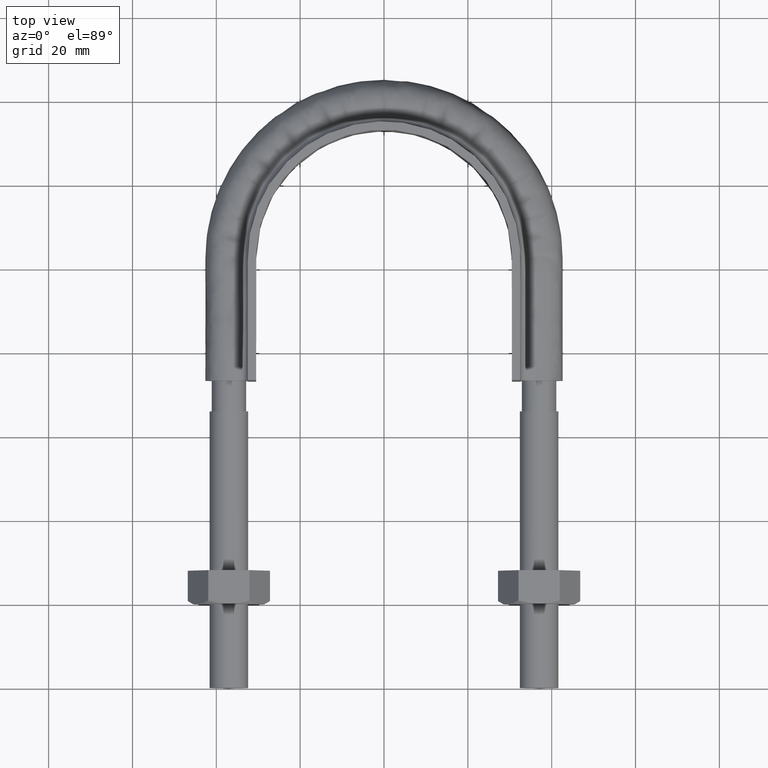
[diagram: clean part render]
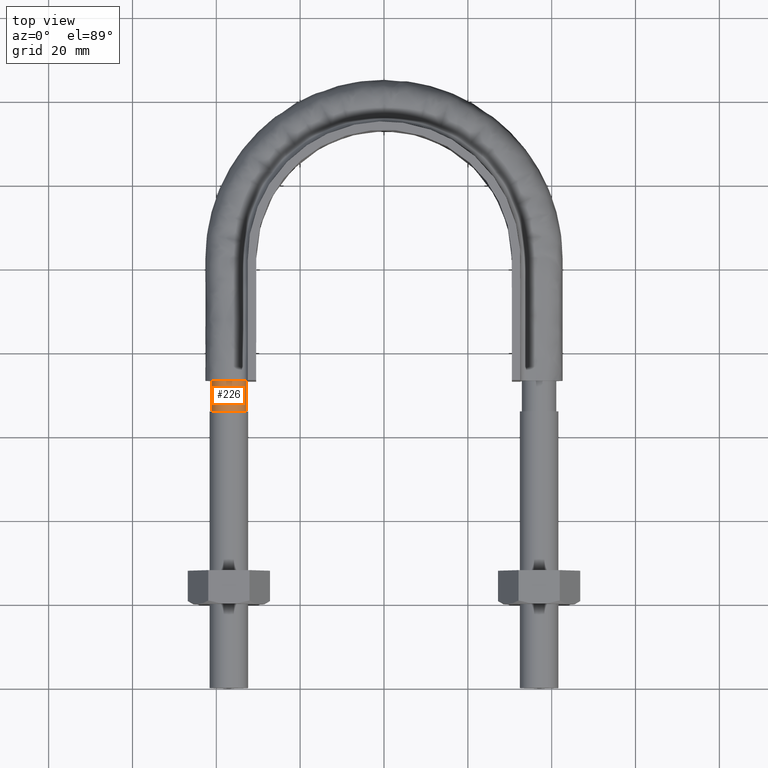
[diagram: same view with one face highlighted and labeled with its STEP entity id]
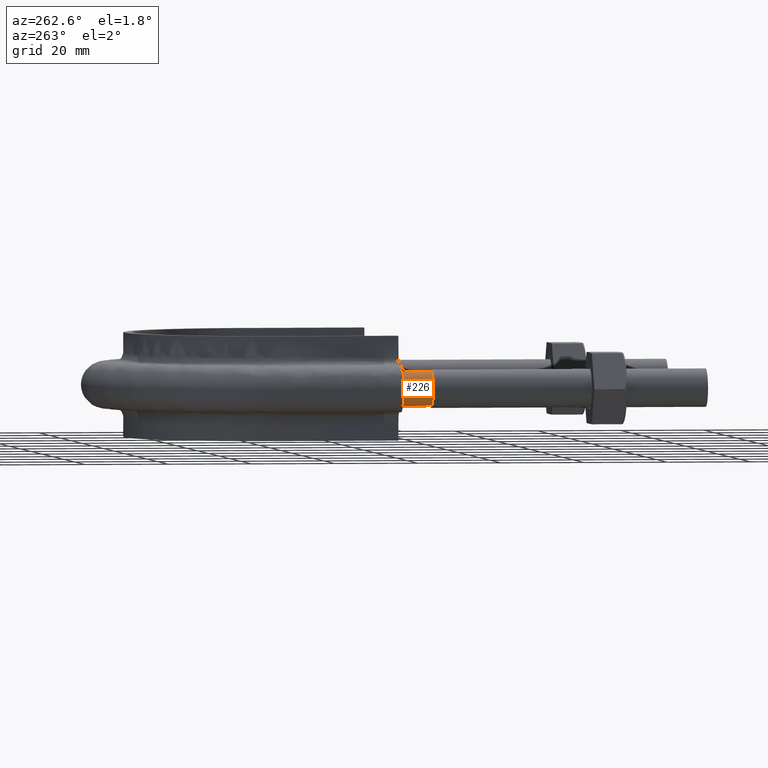
[diagram: same view with one face highlighted and labeled with its STEP entity id]
A machine part, top view. The second image highlights one B-rep face of the part: STEP entity #226.
A second angle (auxiliary view) of the same face is appended — the face is thin or edge-on in the first view.
In plain terms, the highlighted cylindrical surface (bore or boss wall) has radius 4.1 mm, axis along (0, 1, -0).
Its self-contained STEP definition (entity closure, byte-faithful):
#226 = ADVANCED_FACE( '', ( #313, #314 ), #315, .T. );
#313 = FACE_OUTER_BOUND( '', #1161, .T. );
#314 = FACE_OUTER_BOUND( '', #1162, .T. );
#315 = CYLINDRICAL_SURFACE( '', #1163, 4.10000000000000 );
#1161 = EDGE_LOOP( '', ( #1523, #1524, #1525, #1526, #1527, #1528, #1529 ) );
#1162 = EDGE_LOOP( '', ( #1530 ) );
#1163 = AXIS2_PLACEMENT_3D( '', #1531, #1532, #1533 );
#1523 = ORIENTED_EDGE( '', *, *, #2017, .T. );
#1524 = ORIENTED_EDGE( '', *, *, #2018, .T. );
#1525 = ORIENTED_EDGE( '', *, *, #2019, .T. );
#1526 = ORIENTED_EDGE( '', *, *, #2020, .T. );
#1527 = ORIENTED_EDGE( '', *, *, #2021, .T. );
#1528 = ORIENTED_EDGE( '', *, *, #2022, .T. );
#1529 = ORIENTED_EDGE( '', *, *, #2023, .T. );
#1530 = ORIENTED_EDGE( '', *, *, #2024, .T. );
#1531 = CARTESIAN_POINT( '', ( -37.0000000000000, 73.3000000000000, -2.07570776972893E-015 ) );
#1532 = DIRECTION( '', ( 2.44921270764475E-016, 1.00000000000000, -6.12303176911189E-017 ) );
#1533 = DIRECTION( '', ( 1.00000000000000, -2.44921270764475E-016, 0.000000000000000 ) );
#2017 = EDGE_CURVE( '', #2179, #2180, #2181, .T. );
#2018 = EDGE_CURVE( '', #2180, #2182, #2183, .T. );
#2019 = EDGE_CURVE( '', #2182, #2184, #2185, .T. );
#2020 = EDGE_CURVE( '', #2184, #2186, #2187, .T. );
#2021 = EDGE_CURVE( '', #2186, #2188, #2189, .T. );
#2022 = EDGE_CURVE( '', #2188, #2190, #2191, .T. );
#2023 = EDGE_CURVE( '', #2190, #2179, #2192, .T. );
#2024 = EDGE_CURVE( '', #2193, #2193, #2194, .F. );
#2179 = VERTEX_POINT( '', #2634 );
#2180 = VERTEX_POINT( '', #2635 );
#2181 = CIRCLE( '', #2636, 4.10000000000000 );
#2182 = VERTEX_POINT( '', #2637 );
#2183 = CIRCLE( '', #2638, 4.10000000000000 );
#2184 = VERTEX_POINT( '', #2639 );
#2185 = CIRCLE( '', #2640, 4.10000000000000 );
#2186 = VERTEX_POINT( '', #2641 );
#2187 = CIRCLE( '', #2642, 4.10000000000000 );
#2188 = VERTEX_POINT( '', #2643 );
#2189 = CIRCLE( '', #2644, 4.10000000000000 );
#2190 = VERTEX_POINT( '', #2645 );
#2191 = CIRCLE( '', #2646, 4.10000000000000 );
#2192 = CIRCLE( '', #2647, 4.10000000000000 );
#2193 = VERTEX_POINT( '', #2648 );
#2194 = CIRCLE( '', #2649, 4.10000000000000 );
#2634 = CARTESIAN_POINT( '', ( -32.9000000000000, 73.3000000000001, 5.38378651292854E-014 ) );
#2635 = CARTESIAN_POINT( '', ( -34.4436918124004, 73.3000000000000, 3.20550907813581 ) );
#2636 = AXIS2_PLACEMENT_3D( '', #3080, #3081, #3082 );
#2637 = CARTESIAN_POINT( '', ( -37.9123358292393, 73.3000000000000, 3.99720443994127 ) );
#2638 = AXIS2_PLACEMENT_3D( '', #3083, #3084, #3085 );
#2639 = CARTESIAN_POINT( '', ( -40.6939723584001, 73.3000000000000, 1.77892333038163 ) );
#2640 = AXIS2_PLACEMENT_3D( '', #3086, #3087, #3088 );
#2641 = CARTESIAN_POINT( '', ( -40.6939723583999, 73.3000000000000, -1.77892333038198 ) );
#2642 = AXIS2_PLACEMENT_3D( '', #3089, #3090, #3091 );
#2643 = CARTESIAN_POINT( '', ( -37.9123358292208, 73.3000000000000, -3.99720443994549 ) );
#2644 = AXIS2_PLACEMENT_3D( '', #3092, #3093, #3094 );
#2645 = CARTESIAN_POINT( '', ( -34.4436918123793, 73.3000000000000, -3.20550907811902 ) );
#2646 = AXIS2_PLACEMENT_3D( '', #3095, #3096, #3097 );
#2647 = AXIS2_PLACEMENT_3D( '', #3098, #3099, #3100 );
#2648 = CARTESIAN_POINT( '', ( -32.9000000000000, 66.0000000000000, -1.62872645058376E-015 ) );
#2649 = AXIS2_PLACEMENT_3D( '', #3101, #3102, #3103 );
#3080 = CARTESIAN_POINT( '', ( -37.0000000000000, 73.3000000000000, -2.07570776972893E-015 ) );
#3081 = DIRECTION( '', ( -2.44921270764475E-016, -1.00000000000000, 6.12303176911189E-017 ) );
#3082 = DIRECTION( '', ( 1.00000000000000, -2.44921270764475E-016, 0.000000000000000 ) );
#3083 = CARTESIAN_POINT( '', ( -37.0000000000000, 73.3000000000000, -2.07570776972893E-015 ) );
#3084 = DIRECTION( '', ( -2.44921270764475E-016, -1.00000000000000, 6.12303176911189E-017 ) );
#3085 = DIRECTION( '', ( 1.00000000000000, -2.44921270764475E-016, 0.000000000000000 ) );
#3086 = CARTESIAN_POINT( '', ( -37.0000000000000, 73.3000000000000, -2.07570776972893E-015 ) );
#3087 = DIRECTION( '', ( -2.44921270764475E-016, -1.00000000000000, 6.12303176911189E-017 ) );
#3088 = DIRECTION( '', ( 1.00000000000000, -2.44921270764475E-016, 0.000000000000000 ) );
#3089 = CARTESIAN_POINT( '', ( -37.0000000000000, 73.3000000000000, -2.07570776972893E-015 ) );
#3090 = DIRECTION( '', ( -2.44921270764475E-016, -1.00000000000000, 6.12303176911189E-017 ) );
#3091 = DIRECTION( '', ( 1.00000000000000, -2.44921270764475E-016, 0.000000000000000 ) );
#3092 = CARTESIAN_POINT( '', ( -37.0000000000000, 73.3000000000000, -2.07570776972893E-015 ) );
#3093 = DIRECTION( '', ( -2.44921270764475E-016, -1.00000000000000, 6.12303176911189E-017 ) );
#3094 = DIRECTION( '', ( 1.00000000000000, -2.44921270764475E-016, 0.000000000000000 ) );
#3095 = CARTESIAN_POINT( '', ( -37.0000000000000, 73.3000000000000, -2.07570776972893E-015 ) );
#3096 = DIRECTION( '', ( -2.44921270764475E-016, -1.00000000000000, 6.12303176911189E-017 ) );
#3097 = DIRECTION( '', ( 1.00000000000000, -2.44921270764475E-016, 0.000000000000000 ) );
#3098 = CARTESIAN_POINT( '', ( -37.0000000000000, 73.3000000000000, -2.07570776972893E-015 ) );
#3099 = DIRECTION( '', ( -2.44921270764475E-016, -1.00000000000000, 6.12303176911189E-017 ) );
#3100 = DIRECTION( '', ( 1.00000000000000, -2.44921270764475E-016, 0.000000000000000 ) );
#3101 = CARTESIAN_POINT( '', ( -37.0000000000000, 66.0000000000000, -1.62872645058376E-015 ) );
#3102 = DIRECTION( '', ( -2.44921270764475E-016, -1.00000000000000, 6.12303176911189E-017 ) );
#3103 = DIRECTION( '', ( 1.00000000000000, -2.44921270764475E-016, 0.000000000000000 ) );